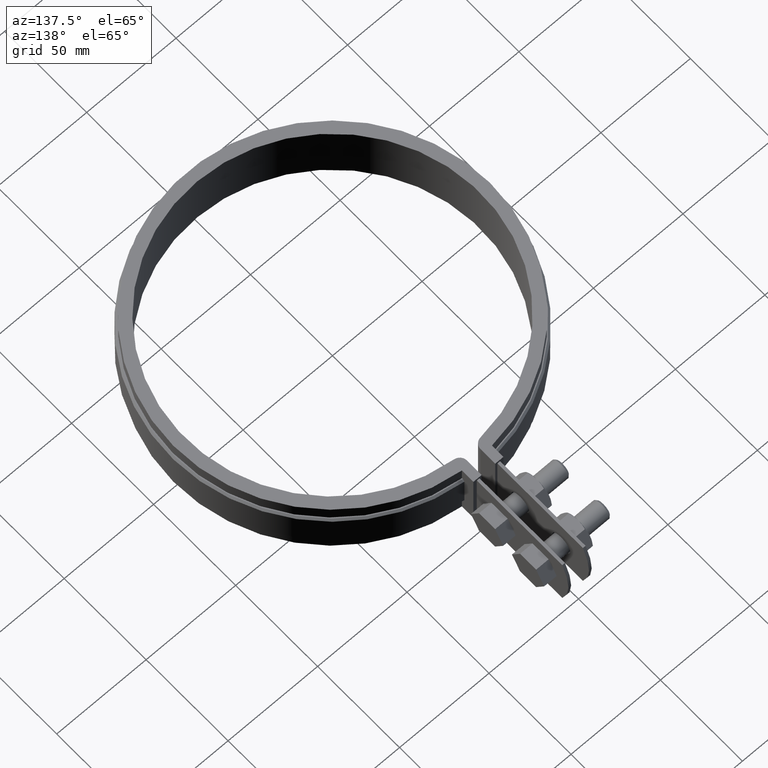
[diagram: clean part render]
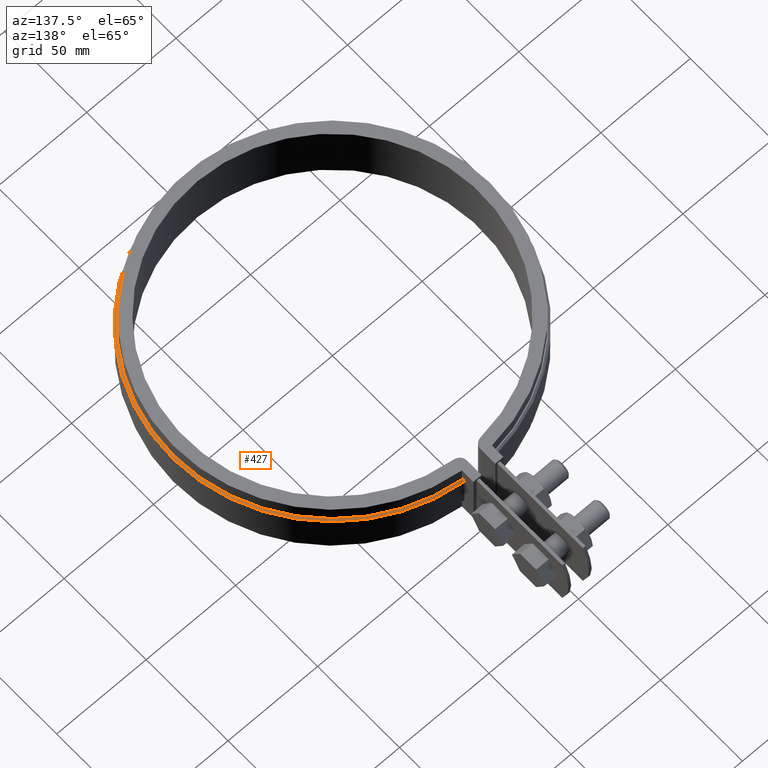
[diagram: same view with one face highlighted and labeled with its STEP entity id]
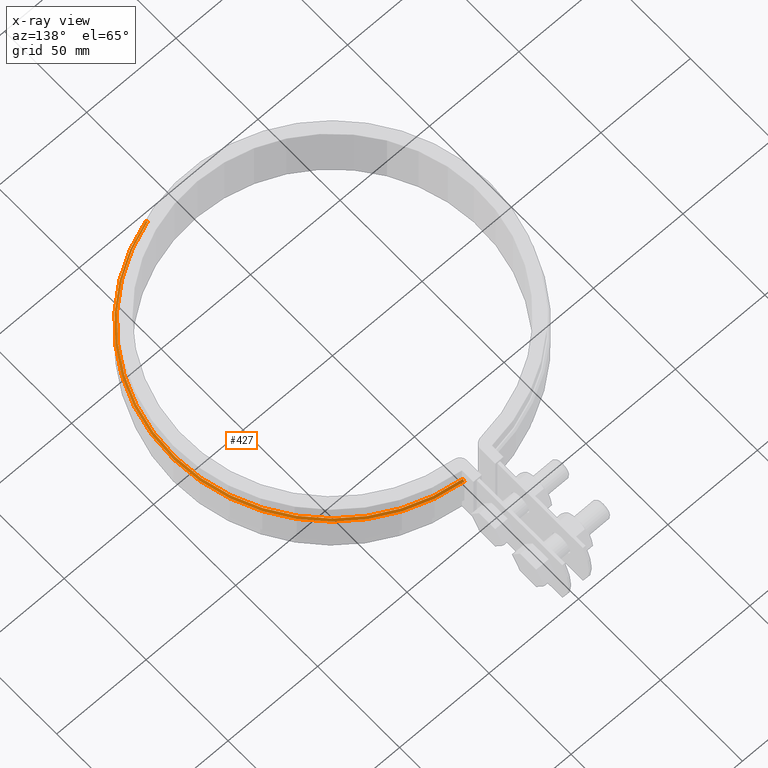
[diagram: x-ray of the same camera — body ghosted, the highlighted face saturated]
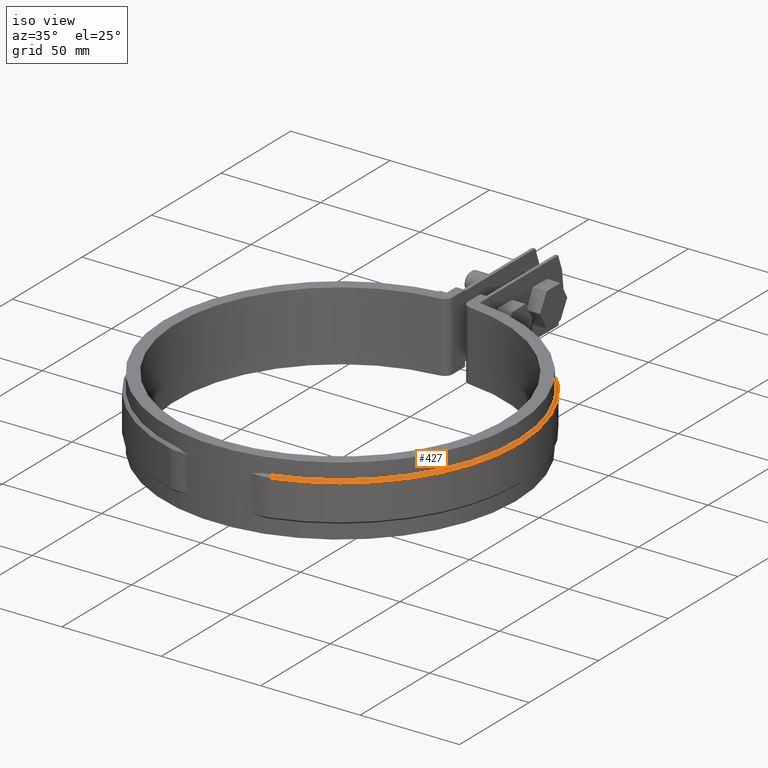
[diagram: same view with one face highlighted and labeled with its STEP entity id]
A machine part, auxiliary view. The second image highlights one B-rep face of the part: STEP entity #427.
The next image is the same camera in x-ray: the body ghosted, the highlighted face saturated — about 0% of this face is hidden behind the body in this view.
A second angle (iso view) of the same face is appended — the face is thin or edge-on in the first view.
In plain terms, the highlighted conical surface has half-angle 45 deg.
Its self-contained STEP definition (entity closure, byte-faithful):
#427 = ADVANCED_FACE( '', ( #718 ), #719, .T. );
#718 = FACE_OUTER_BOUND( '', #1804, .T. );
#719 = CONICAL_SURFACE( '', #1805, 89.0000000000000, 0.785398163397441 );
#1804 = EDGE_LOOP( '', ( #4284, #4285, #4286, #4287 ) );
#1805 = AXIS2_PLACEMENT_3D( '', #4288, #4289, #4290 );
#4284 = ORIENTED_EDGE( '', *, *, #4909, .F. );
#4285 = ORIENTED_EDGE( '', *, *, #4879, .F. );
#4286 = ORIENTED_EDGE( '', *, *, #4913, .F. );
#4287 = ORIENTED_EDGE( '', *, *, #4889, .F. );
#4288 = CARTESIAN_POINT( '', ( 1.38777878078145E-014, -4.16333634234434E-014, -6.00000000000000 ) );
#4289 = DIRECTION( '', ( 0.000000000000000, 0.000000000000000, -1.00000000000000 ) );
#4290 = DIRECTION( '', ( -1.00000000000000, 0.000000000000000, 0.000000000000000 ) );
#4879 = EDGE_CURVE( '', #5456, #5458, #5459, .T. );
#4889 = EDGE_CURVE( '', #5474, #5476, #5477, .F. );
#4909 = EDGE_CURVE( '', #5458, #5474, #5502, .T. );
#4913 = EDGE_CURVE( '', #5476, #5456, #5506, .T. );
#5456 = VERTEX_POINT( '', #8299 );
#5458 = VERTEX_POINT( '', #8301 );
#5459 = CIRCLE( '', #8302, 89.0000000000000 );
#5474 = VERTEX_POINT( '', #8323 );
#5476 = VERTEX_POINT( '', #8326 );
#5477 = CIRCLE( '', #8327, 90.0000000000000 );
#5502 = B_SPLINE_CURVE_WITH_KNOTS( '', 3, ( #8364, #8365, #8366, #8367 ), .UNSPECIFIED., .F., .F., ( 4, 4 ), ( 0.000000000000000, 0.00141735220717066 ), .UNSPECIFIED. );
#5506 = LINE( '', #8374, #8375 );
#8299 = CARTESIAN_POINT( '', ( 24.9200000000000, -85.4400000000000, -6.00000000000000 ) );
#8301 = CARTESIAN_POINT( '', ( 8.40000000000002, 88.6027087622043, -6.00000000000000 ) );
#8302 = AXIS2_PLACEMENT_3D( '', #8983, #8984, #8985 );
#8323 = CARTESIAN_POINT( '', ( 8.39999999999997, 89.6071425724534, -7.00000000000001 ) );
#8326 = CARTESIAN_POINT( '', ( 25.2000000000000, -86.4000000000000, -7.00000000000001 ) );
#8327 = AXIS2_PLACEMENT_3D( '', #8999, #9000, #9001 );
#8364 = CARTESIAN_POINT( '', ( 8.40000000000002, 88.6027087622043, -6.00000000000000 ) );
#8365 = CARTESIAN_POINT( '', ( 8.40000000000002, 88.9375283537308, -6.33332497478547 ) );
#8366 = CARTESIAN_POINT( '', ( 8.40000000000000, 89.2723395311518, -6.66665840160440 ) );
#8367 = CARTESIAN_POINT( '', ( 8.40000000000000, 89.6071425724534, -7.00000000000000 ) );
#8374 = CARTESIAN_POINT( '', ( 25.2000000000000, -86.4000000000000, -7.00000000000000 ) );
#8375 = VECTOR( '', #9041, 1000.00000000000 );
#8983 = CARTESIAN_POINT( '', ( 1.38777878078145E-014, -4.16333634234434E-014, -6.00000000000000 ) );
#8984 = DIRECTION( '', ( 0.000000000000000, 0.000000000000000, 1.00000000000000 ) );
#8985 = DIRECTION( '', ( 1.00000000000000, 0.000000000000000, 0.000000000000000 ) );
#8999 = CARTESIAN_POINT( '', ( 1.38777878078145E-014, -4.16333634234434E-014, -7.00000000000000 ) );
#9000 = DIRECTION( '', ( 0.000000000000000, 0.000000000000000, 1.00000000000000 ) );
#9001 = DIRECTION( '', ( 1.00000000000000, 0.000000000000000, 0.000000000000000 ) );
#9041 = DIRECTION( '', ( -0.197989898732231, 0.678822509939081, 0.707106781186553 ) );